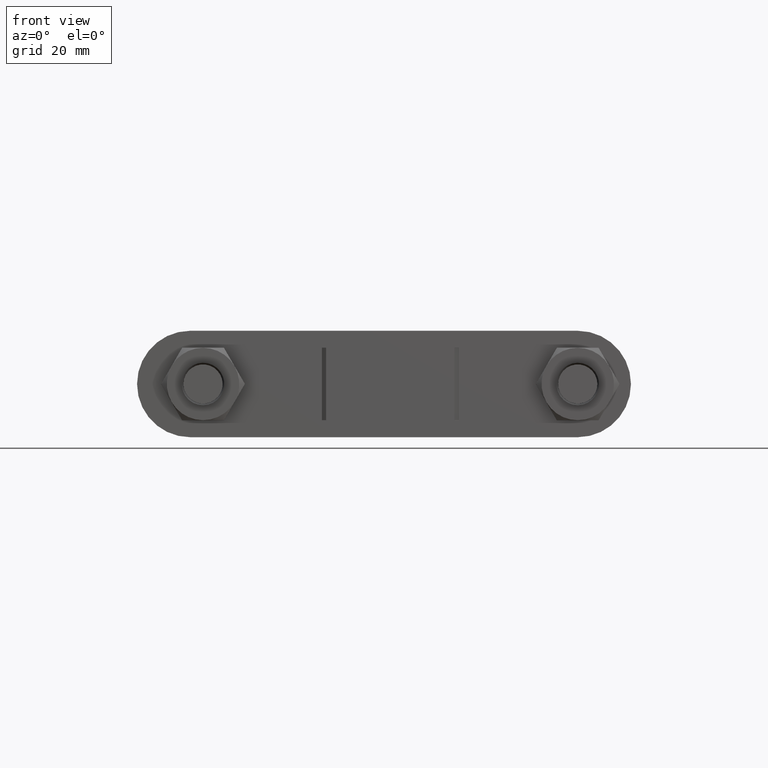
[diagram: clean part render]
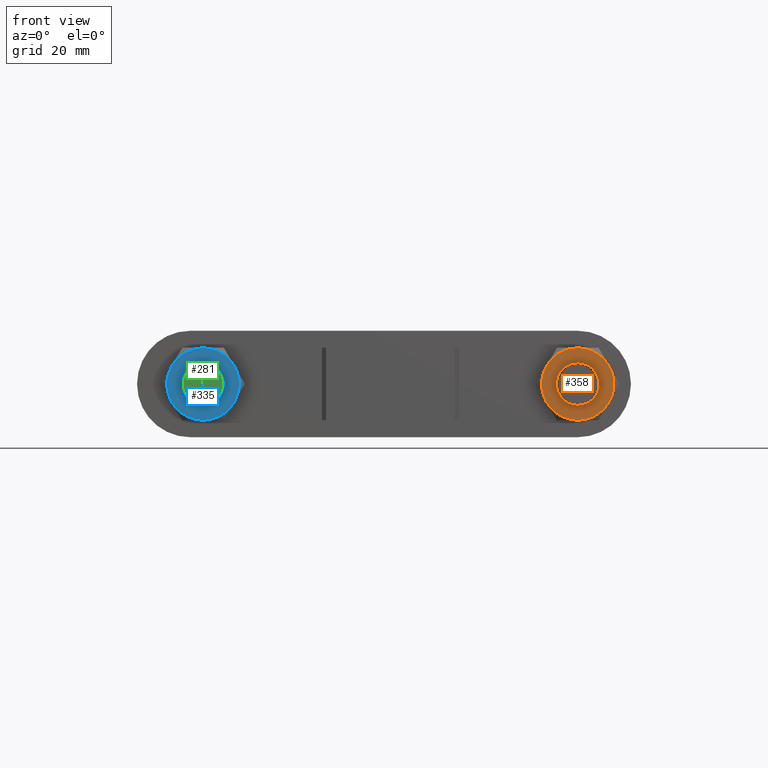
[diagram: same view with three faces highlighted in distinct colors, each labeled with its STEP entity id]
A machine part, front view with three faces highlighted in distinct colors.
Their STEP definitions:

[orange] entity #358 — the highlighted planar face has unit normal (0, 1, 0).
#358 = ADVANCED_FACE( '', ( #589, #590 ), #591, .F. );
#589 = FACE_OUTER_BOUND( '', #1671, .T. );
#590 = FACE_BOUND( '', #1672, .T. );
#591 = PLANE( '', #1673 );
#1671 = EDGE_LOOP( '', ( #2379, #2380, #2381, #2382, #2383, #2384 ) );
#1672 = EDGE_LOOP( '', ( #2385 ) );
#1673 = AXIS2_PLACEMENT_3D( '', #2386, #2387, #2388 );
#2379 = ORIENTED_EDGE( '', *, *, #2737, .F. );
#2380 = ORIENTED_EDGE( '', *, *, #2738, .F. );
#2381 = ORIENTED_EDGE( '', *, *, #2739, .F. );
#2382 = ORIENTED_EDGE( '', *, *, #2740, .F. );
#2383 = ORIENTED_EDGE( '', *, *, #2735, .F. );
#2384 = ORIENTED_EDGE( '', *, *, #2741, .F. );
#2385 = ORIENTED_EDGE( '', *, *, #2742, .T. );
#2386 = CARTESIAN_POINT( '', ( 44.0000000000000, 22.0000000000026, 1.40829730689589E-015 ) );
#2387 = DIRECTION( '', ( 2.44921270764475E-016, 1.00000000000000, 6.12303176911188E-017 ) );
#2388 = DIRECTION( '', ( -2.47579734491410E-013, 6.12303176911795E-017, -1.00000000000000 ) );
#2735 = EDGE_CURVE( '', #3100, #3102, #3103, .T. );
#2737 = EDGE_CURVE( '', #3105, #3106, #3107, .T. );
#2738 = EDGE_CURVE( '', #3108, #3105, #3109, .T. );
#2739 = EDGE_CURVE( '', #3110, #3108, #3111, .T. );
#2740 = EDGE_CURVE( '', #3102, #3110, #3112, .T. );
#2741 = EDGE_CURVE( '', #3106, #3100, #3113, .T. );
#2742 = EDGE_CURVE( '', #3114, #3114, #3115, .T. );
#3100 = VERTEX_POINT( '', #3915 );
#3102 = VERTEX_POINT( '', #3922 );
#3103 = CIRCLE( '', #3923, 8.50000000000000 );
#3105 = VERTEX_POINT( '', #3932 );
#3106 = VERTEX_POINT( '', #3933 );
#3107 = CIRCLE( '', #3934, 8.50000000000000 );
#3108 = VERTEX_POINT( '', #3935 );
#3109 = CIRCLE( '', #3936, 8.50000000000000 );
#3110 = VERTEX_POINT( '', #3937 );
#3111 = CIRCLE( '', #3938, 8.50000000000000 );
#3112 = CIRCLE( '', #3939, 8.50000000000000 );
#3113 = CIRCLE( '', #3940, 8.50000000000000 );
#3114 = VERTEX_POINT( '', #3941 );
#3115 = CIRCLE( '', #3942, 5.00000000000000 );
#3915 = CARTESIAN_POINT( '', ( 44.0000000000021, 22.0000000000026, 8.50000000000000 ) );
#3922 = CARTESIAN_POINT( '', ( 51.3612159321664, 22.0000000000026, 4.24999999999818 ) );
#3923 = AXIS2_PLACEMENT_3D( '', #4357, #4358, #4359 );
#3932 = CARTESIAN_POINT( '', ( 36.6387840678336, 22.0000000000026, -4.24999999999818 ) );
#3933 = CARTESIAN_POINT( '', ( 36.6387840678357, 22.0000000000026, 4.25000000000182 ) );
#3934 = AXIS2_PLACEMENT_3D( '', #4360, #4361, #4362 );
#3935 = CARTESIAN_POINT( '', ( 43.9999999999979, 22.0000000000026, -8.50000000000000 ) );
#3936 = AXIS2_PLACEMENT_3D( '', #4363, #4364, #4365 );
#3937 = CARTESIAN_POINT( '', ( 51.3612159321643, 22.0000000000026, -4.25000000000182 ) );
#3938 = AXIS2_PLACEMENT_3D( '', #4366, #4367, #4368 );
#3939 = AXIS2_PLACEMENT_3D( '', #4369, #4370, #4371 );
#3940 = AXIS2_PLACEMENT_3D( '', #4372, #4373, #4374 );
#3941 = CARTESIAN_POINT( '', ( 43.9999999999988, 22.0000000000026, -5.00000000000000 ) );
#3942 = AXIS2_PLACEMENT_3D( '', #4375, #4376, #4377 );
#4357 = CARTESIAN_POINT( '', ( 44.0000000000000, 22.0000000000026, 1.40829730689589E-015 ) );
#4358 = DIRECTION( '', ( 2.44921270764476E-016, 1.00000000000000, 6.12303176911189E-017 ) );
#4359 = DIRECTION( '', ( -2.47579734491410E-013, 6.12303176911795E-017, -1.00000000000000 ) );
#4360 = CARTESIAN_POINT( '', ( 44.0000000000000, 22.0000000000026, 1.40829730689589E-015 ) );
#4361 = DIRECTION( '', ( 2.44921270764476E-016, 1.00000000000000, 6.12303176911189E-017 ) );
#4362 = DIRECTION( '', ( -2.47579734491410E-013, 6.12303176911795E-017, -1.00000000000000 ) );
#4363 = CARTESIAN_POINT( '', ( 44.0000000000000, 22.0000000000026, 1.40829730689589E-015 ) );
#4364 = DIRECTION( '', ( 2.44921270764476E-016, 1.00000000000000, 6.12303176911189E-017 ) );
#4365 = DIRECTION( '', ( -2.47579734491410E-013, 6.12303176911795E-017, -1.00000000000000 ) );
#4366 = CARTESIAN_POINT( '', ( 44.0000000000000, 22.0000000000026, 1.40829730689589E-015 ) );
#4367 = DIRECTION( '', ( 2.44921270764476E-016, 1.00000000000000, 6.12303176911189E-017 ) );
#4368 = DIRECTION( '', ( -2.47579734491410E-013, 6.12303176911795E-017, -1.00000000000000 ) );
#4369 = CARTESIAN_POINT( '', ( 44.0000000000000, 22.0000000000026, 1.40829730689589E-015 ) );
#4370 = DIRECTION( '', ( 2.44921270764476E-016, 1.00000000000000, 6.12303176911189E-017 ) );
#4371 = DIRECTION( '', ( -2.47579734491410E-013, 6.12303176911795E-017, -1.00000000000000 ) );
#4372 = CARTESIAN_POINT( '', ( 44.0000000000000, 22.0000000000026, 1.40829730689589E-015 ) );
#4373 = DIRECTION( '', ( 2.44921270764476E-016, 1.00000000000000, 6.12303176911189E-017 ) );
#4374 = DIRECTION( '', ( -2.47579734491410E-013, 6.12303176911795E-017, -1.00000000000000 ) );
#4375 = CARTESIAN_POINT( '', ( 44.0000000000000, 22.0000000000026, 1.40829730689589E-015 ) );
#4376 = DIRECTION( '', ( 2.44921270764476E-016, 1.00000000000000, 6.12303176911189E-017 ) );
#4377 = DIRECTION( '', ( -2.47579734491410E-013, 6.12303176911795E-017, -1.00000000000000 ) );

[blue] entity #335 — the highlighted planar face has unit normal (0, 1, 0).
#335 = ADVANCED_FACE( '', ( #538, #539 ), #540, .F. );
#538 = FACE_OUTER_BOUND( '', #1620, .T. );
#539 = FACE_BOUND( '', #1621, .T. );
#540 = PLANE( '', #1622 );
#1620 = EDGE_LOOP( '', ( #2206, #2207, #2208, #2209, #2210, #2211 ) );
#1621 = EDGE_LOOP( '', ( #2212 ) );
#1622 = AXIS2_PLACEMENT_3D( '', #2213, #2214, #2215 );
#2206 = ORIENTED_EDGE( '', *, *, #2685, .F. );
#2207 = ORIENTED_EDGE( '', *, *, #2686, .F. );
#2208 = ORIENTED_EDGE( '', *, *, #2687, .F. );
#2209 = ORIENTED_EDGE( '', *, *, #2688, .F. );
#2210 = ORIENTED_EDGE( '', *, *, #2683, .F. );
#2211 = ORIENTED_EDGE( '', *, *, #2689, .F. );
#2212 = ORIENTED_EDGE( '', *, *, #2690, .T. );
#2213 = CARTESIAN_POINT( '', ( -44.0000000000000, 22.0000000000026, 1.40829730689589E-015 ) );
#2214 = DIRECTION( '', ( 2.44921270764475E-016, 1.00000000000000, 6.12303176911188E-017 ) );
#2215 = DIRECTION( '', ( -2.47579734491410E-013, 6.12303176911795E-017, -1.00000000000000 ) );
#2683 = EDGE_CURVE( '', #3014, #3016, #3017, .T. );
#2685 = EDGE_CURVE( '', #3019, #3020, #3021, .T. );
#2686 = EDGE_CURVE( '', #3022, #3019, #3023, .T. );
#2687 = EDGE_CURVE( '', #3024, #3022, #3025, .T. );
#2688 = EDGE_CURVE( '', #3016, #3024, #3026, .T. );
#2689 = EDGE_CURVE( '', #3020, #3014, #3027, .T. );
#2690 = EDGE_CURVE( '', #3028, #3028, #3029, .T. );
#3014 = VERTEX_POINT( '', #3743 );
#3016 = VERTEX_POINT( '', #3750 );
#3017 = CIRCLE( '', #3751, 8.50000000000000 );
#3019 = VERTEX_POINT( '', #3760 );
#3020 = VERTEX_POINT( '', #3761 );
#3021 = CIRCLE( '', #3762, 8.50000000000000 );
#3022 = VERTEX_POINT( '', #3763 );
#3023 = CIRCLE( '', #3764, 8.50000000000000 );
#3024 = VERTEX_POINT( '', #3765 );
#3025 = CIRCLE( '', #3766, 8.50000000000000 );
#3026 = CIRCLE( '', #3767, 8.50000000000000 );
#3027 = CIRCLE( '', #3768, 8.50000000000000 );
#3028 = VERTEX_POINT( '', #3769 );
#3029 = CIRCLE( '', #3770, 5.00000000000000 );
#3743 = CARTESIAN_POINT( '', ( -43.9999999999979, 22.0000000000026, 8.50000000000000 ) );
#3750 = CARTESIAN_POINT( '', ( -36.6387840678336, 22.0000000000026, 4.24999999999818 ) );
#3751 = AXIS2_PLACEMENT_3D( '', #4273, #4274, #4275 );
#3760 = CARTESIAN_POINT( '', ( -51.3612159321663, 22.0000000000026, -4.24999999999818 ) );
#3761 = CARTESIAN_POINT( '', ( -51.3612159321642, 22.0000000000026, 4.25000000000182 ) );
#3762 = AXIS2_PLACEMENT_3D( '', #4276, #4277, #4278 );
#3763 = CARTESIAN_POINT( '', ( -44.0000000000021, 22.0000000000026, -8.50000000000000 ) );
#3764 = AXIS2_PLACEMENT_3D( '', #4279, #4280, #4281 );
#3765 = CARTESIAN_POINT( '', ( -36.6387840678357, 22.0000000000026, -4.25000000000182 ) );
#3766 = AXIS2_PLACEMENT_3D( '', #4282, #4283, #4284 );
#3767 = AXIS2_PLACEMENT_3D( '', #4285, #4286, #4287 );
#3768 = AXIS2_PLACEMENT_3D( '', #4288, #4289, #4290 );
#3769 = CARTESIAN_POINT( '', ( -44.0000000000012, 22.0000000000026, -5.00000000000000 ) );
#3770 = AXIS2_PLACEMENT_3D( '', #4291, #4292, #4293 );
#4273 = CARTESIAN_POINT( '', ( -44.0000000000000, 22.0000000000026, 1.40829730689589E-015 ) );
#4274 = DIRECTION( '', ( 2.44921270764476E-016, 1.00000000000000, 6.12303176911189E-017 ) );
#4275 = DIRECTION( '', ( -2.47579734491410E-013, 6.12303176911795E-017, -1.00000000000000 ) );
#4276 = CARTESIAN_POINT( '', ( -44.0000000000000, 22.0000000000026, 1.40829730689589E-015 ) );
#4277 = DIRECTION( '', ( 2.44921270764476E-016, 1.00000000000000, 6.12303176911189E-017 ) );
#4278 = DIRECTION( '', ( -2.47579734491410E-013, 6.12303176911795E-017, -1.00000000000000 ) );
#4279 = CARTESIAN_POINT( '', ( -44.0000000000000, 22.0000000000026, 1.40829730689589E-015 ) );
#4280 = DIRECTION( '', ( 2.44921270764476E-016, 1.00000000000000, 6.12303176911189E-017 ) );
#4281 = DIRECTION( '', ( -2.47579734491410E-013, 6.12303176911795E-017, -1.00000000000000 ) );
#4282 = CARTESIAN_POINT( '', ( -44.0000000000000, 22.0000000000026, 1.40829730689589E-015 ) );
#4283 = DIRECTION( '', ( 2.44921270764476E-016, 1.00000000000000, 6.12303176911189E-017 ) );
#4284 = DIRECTION( '', ( -2.47579734491410E-013, 6.12303176911795E-017, -1.00000000000000 ) );
#4285 = CARTESIAN_POINT( '', ( -44.0000000000000, 22.0000000000026, 1.40829730689589E-015 ) );
#4286 = DIRECTION( '', ( 2.44921270764476E-016, 1.00000000000000, 6.12303176911189E-017 ) );
#4287 = DIRECTION( '', ( -2.47579734491410E-013, 6.12303176911795E-017, -1.00000000000000 ) );
#4288 = CARTESIAN_POINT( '', ( -44.0000000000000, 22.0000000000026, 1.40829730689589E-015 ) );
#4289 = DIRECTION( '', ( 2.44921270764476E-016, 1.00000000000000, 6.12303176911189E-017 ) );
#4290 = DIRECTION( '', ( -2.47579734491410E-013, 6.12303176911795E-017, -1.00000000000000 ) );
#4291 = CARTESIAN_POINT( '', ( -44.0000000000000, 22.0000000000026, 1.40829730689589E-015 ) );
#4292 = DIRECTION( '', ( 2.44921270764476E-016, 1.00000000000000, 6.12303176911189E-017 ) );
#4293 = DIRECTION( '', ( -2.47579734491410E-013, 6.12303176911795E-017, -1.00000000000000 ) );

[green] entity #281 — the highlighted planar face has unit normal (-0, -1, -0).
#281 = ADVANCED_FACE( '', ( #416 ), #417, .T. );
#416 = FACE_OUTER_BOUND( '', #1498, .T. );
#417 = PLANE( '', #1499 );
#1498 = EDGE_LOOP( '', ( #1834 ) );
#1499 = AXIS2_PLACEMENT_3D( '', #1835, #1836, #1837 );
#1834 = ORIENTED_EDGE( '', *, *, #2591, .T. );
#1835 = CARTESIAN_POINT( '', ( -44.0000000000000, 1.07765359136369E-014, 6.12303176911192E-017 ) );
#1836 = DIRECTION( '', ( -2.44921270764475E-016, -1.00000000000000, -6.12303176911189E-017 ) );
#1837 = DIRECTION( '', ( 1.00000000000000, -2.44921270764475E-016, -7.49830360911069E-033 ) );
#2591 = EDGE_CURVE( '', #2859, #2859, #2860, .T. );
#2859 = VERTEX_POINT( '', #3516 );
#2860 = CIRCLE( '', #3517, 4.60000000000000 );
#3516 = CARTESIAN_POINT( '', ( -39.4000000000000, 9.64989806812033E-015, 6.12303176911191E-017 ) );
#3517 = AXIS2_PLACEMENT_3D( '', #4144, #4145, #4146 );
#4144 = CARTESIAN_POINT( '', ( -44.0000000000000, 1.07765359136369E-014, 6.12303176911192E-017 ) );
#4145 = DIRECTION( '', ( -2.44921270764476E-016, -1.00000000000000, -6.12303176911189E-017 ) );
#4146 = DIRECTION( '', ( 1.00000000000000, -2.44921270764476E-016, -1.01150562509412E-032 ) );